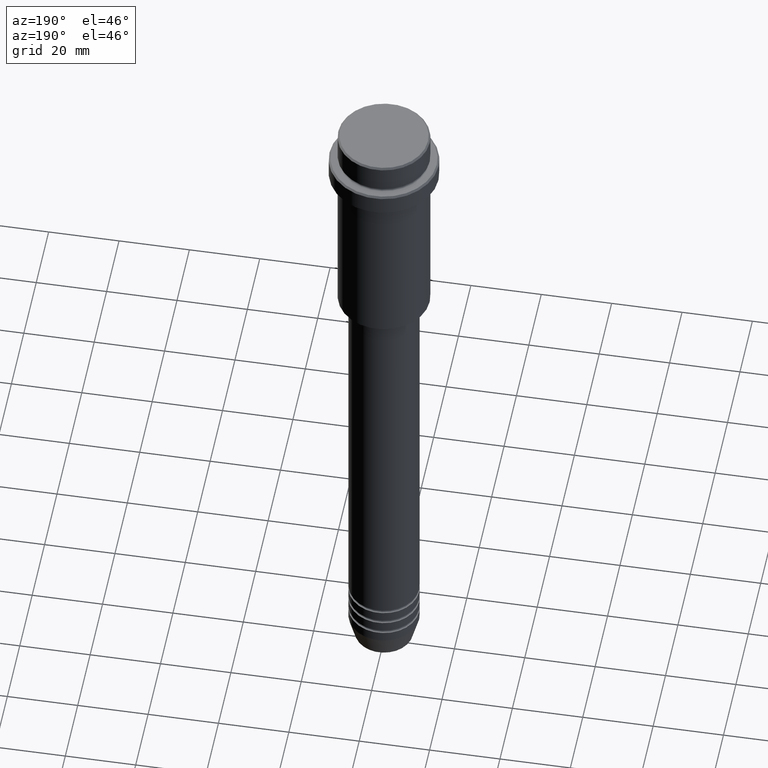
[diagram: clean part render]
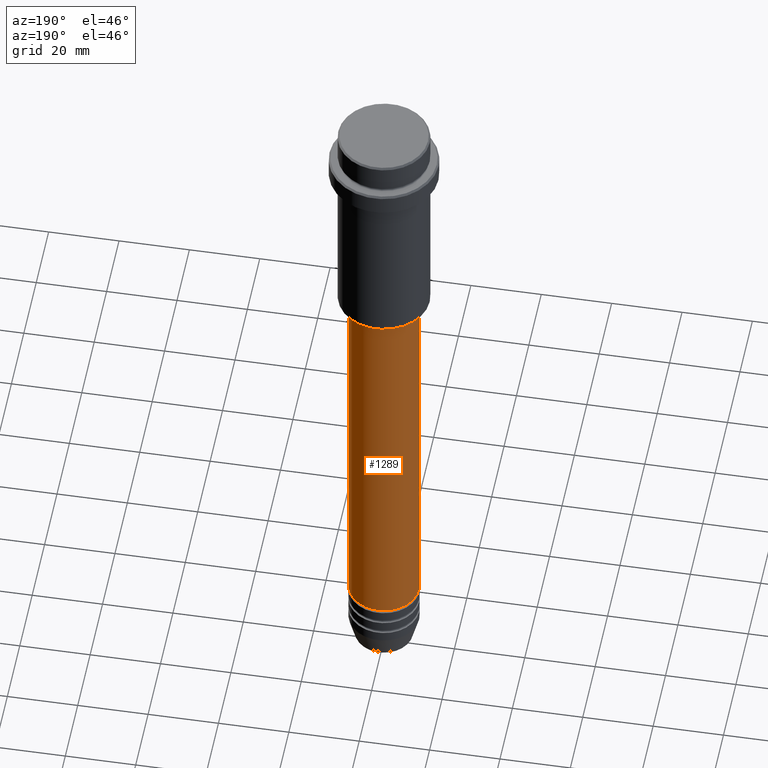
[diagram: same view with one face highlighted and labeled with its STEP entity id]
A machine part, auxiliary view. The second image highlights one B-rep face of the part: STEP entity #1289.
In plain terms, the highlighted cylindrical surface (edge-blend (fillet) strip) has radius 10 mm, axis along (-0, -0, 1).
Its self-contained STEP definition (entity closure, byte-faithful):
#19 = VERTEX_POINT ( 'NONE', #1144 ) ;
#54 = CARTESIAN_POINT ( 'NONE',  ( 0.000000000000000000, 0.000000000000000000, -66.00000000000000000 ) ) ;
#71 = DIRECTION ( 'NONE',  ( 1.000000000000000000, 0.000000000000000000, 0.000000000000000000 ) ) ;
#123 = CARTESIAN_POINT ( 'NONE',  ( -10.00000000000000178, 1.224646799147353454E-15, -66.00000000000000000 ) ) ;
#138 = CIRCLE ( 'NONE', #381, 10.00000000000000178 ) ;
#159 = LINE ( 'NONE', #1037, #1024 ) ;
#199 = ORIENTED_EDGE ( 'NONE', *, *, #294, .T. ) ;
#208 = ORIENTED_EDGE ( 'NONE', *, *, #627, .F. ) ;
#212 = EDGE_LOOP ( 'NONE', ( #333, #199, #208, #780 ) ) ;
#282 = CARTESIAN_POINT ( 'NONE',  ( 10.00000000000000000, 0.000000000000000000, -180.9999999999999147 ) ) ;
#294 = EDGE_CURVE ( 'NONE', #565, #1334, #159, .T. ) ;
#303 = DIRECTION ( 'NONE',  ( -0.000000000000000000, -0.000000000000000000, 1.000000000000000000 ) ) ;
#333 = ORIENTED_EDGE ( 'NONE', *, *, #1198, .T. ) ;
#372 = CARTESIAN_POINT ( 'NONE',  ( -10.00000000000000000, 1.224646799147353256E-15, -180.9999999999999147 ) ) ;
#381 = AXIS2_PLACEMENT_3D ( 'NONE', #54, #303, #71 ) ;
#430 = DIRECTION ( 'NONE',  ( 1.000000000000000000, 0.000000000000000000, 0.000000000000000000 ) ) ;
#440 = DIRECTION ( 'NONE',  ( -0.000000000000000000, -0.000000000000000000, 1.000000000000000000 ) ) ;
#480 = CARTESIAN_POINT ( 'NONE',  ( 0.000000000000000000, 0.000000000000000000, -180.9999999999999147 ) ) ;
#565 = VERTEX_POINT ( 'NONE', #372 ) ;
#610 = DIRECTION ( 'NONE',  ( 1.000000000000000000, 0.000000000000000000, 0.000000000000000000 ) ) ;
#627 = EDGE_CURVE ( 'NONE', #19, #1334, #138, .T. ) ;
#631 = CYLINDRICAL_SURFACE ( 'NONE', #643, 10.00000000000000178 ) ;
#643 = AXIS2_PLACEMENT_3D ( 'NONE', #1187, #646, #430 ) ;
#646 = DIRECTION ( 'NONE',  ( -0.000000000000000000, -0.000000000000000000, 1.000000000000000000 ) ) ;
#654 = LINE ( 'NONE', #1315, #934 ) ;
#689 = VERTEX_POINT ( 'NONE', #282 ) ;
#780 = ORIENTED_EDGE ( 'NONE', *, *, #894, .F. ) ;
#894 = EDGE_CURVE ( 'NONE', #689, #19, #654, .T. ) ;
#934 = VECTOR ( 'NONE', #440, 1000.000000000000000 ) ;
#1011 = AXIS2_PLACEMENT_3D ( 'NONE', #480, #1364, #610 ) ;
#1024 = VECTOR ( 'NONE', #1041, 1000.000000000000000 ) ;
#1037 = CARTESIAN_POINT ( 'NONE',  ( -10.00000000000000178, 1.224646799147353454E-15, 0.000000000000000000 ) ) ;
#1041 = DIRECTION ( 'NONE',  ( -0.000000000000000000, -0.000000000000000000, 1.000000000000000000 ) ) ;
#1144 = CARTESIAN_POINT ( 'NONE',  ( 10.00000000000000178, 0.000000000000000000, -66.00000000000000000 ) ) ;
#1170 = FACE_OUTER_BOUND ( 'NONE', #212, .T. ) ;
#1187 = CARTESIAN_POINT ( 'NONE',  ( 0.000000000000000000, 0.000000000000000000, 0.000000000000000000 ) ) ;
#1198 = EDGE_CURVE ( 'NONE', #689, #565, #1278, .T. ) ;
#1278 = CIRCLE ( 'NONE', #1011, 10.00000000000000000 ) ;
#1289 = ADVANCED_FACE ( 'NONE', ( #1170 ), #631, .T. ) ;
#1315 = CARTESIAN_POINT ( 'NONE',  ( 10.00000000000000178, 0.000000000000000000, 0.000000000000000000 ) ) ;
#1334 = VERTEX_POINT ( 'NONE', #123 ) ;
#1364 = DIRECTION ( 'NONE',  ( -0.000000000000000000, -0.000000000000000000, 1.000000000000000000 ) ) ;